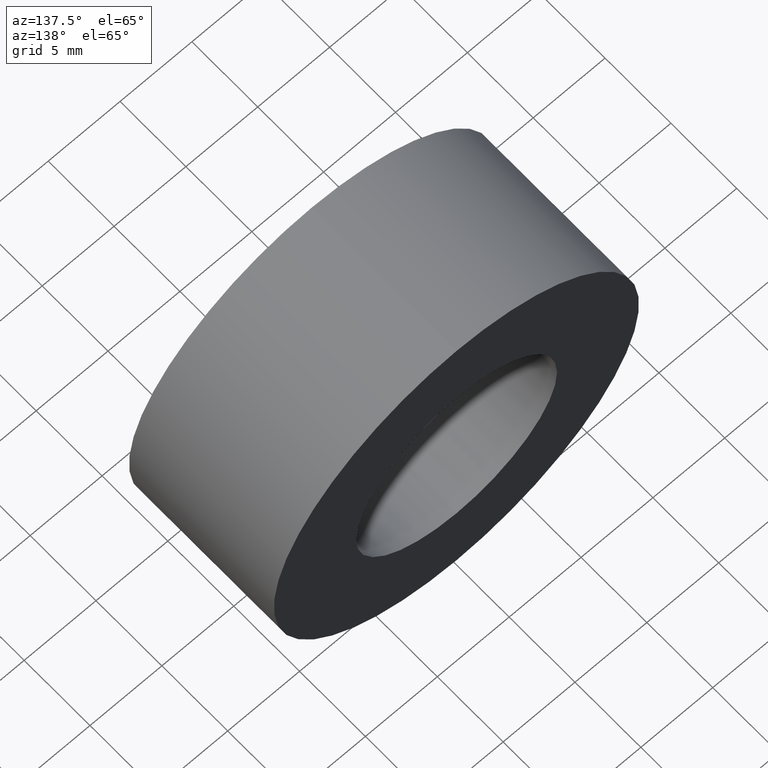
[diagram: clean part render]
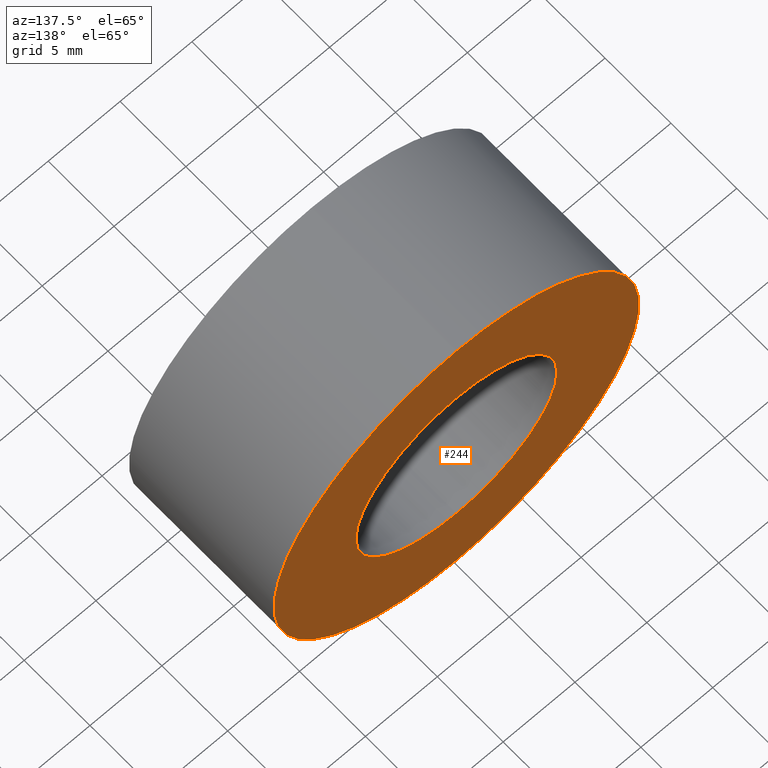
[diagram: same view with one face highlighted and labeled with its STEP entity id]
A machine part, auxiliary view. The second image highlights one B-rep face of the part: STEP entity #244.
In plain terms, the highlighted planar face has unit normal (0, -1, 0).
Its self-contained STEP definition (entity closure, byte-faithful):
#6 = CIRCLE ( 'NONE', #324, 12.70000000000000500 ) ;
#18 = AXIS2_PLACEMENT_3D ( 'NONE', #87, #167, #53 ) ;
#38 = CARTESIAN_POINT ( 'NONE',  ( 0.0000000000000000000, 10.99999999999999600, 0.0000000000000000000 ) ) ;
#44 = DIRECTION ( 'NONE',  ( -0.0000000000000000000, 1.000000000000000000, -0.0000000000000000000 ) ) ;
#53 = DIRECTION ( 'NONE',  ( 0.0000000000000000000, 0.0000000000000000000, 1.000000000000000000 ) ) ;
#54 = AXIS2_PLACEMENT_3D ( 'NONE', #84, #44, #404 ) ;
#61 = VERTEX_POINT ( 'NONE', #230 ) ;
#69 = VERTEX_POINT ( 'NONE', #119 ) ;
#70 = VERTEX_POINT ( 'NONE', #101 ) ;
#72 = ORIENTED_EDGE ( 'NONE', *, *, #141, .F. ) ;
#84 = CARTESIAN_POINT ( 'NONE',  ( 0.0000000000000000000, 10.99999999999999600, 0.0000000000000000000 ) ) ;
#87 = CARTESIAN_POINT ( 'NONE',  ( 0.0000000000000000000, 10.99999999999999600, 0.0000000000000000000 ) ) ;
#101 = CARTESIAN_POINT ( 'NONE',  ( 0.0000000000000000000, 10.99999999999999600, 12.70000000000000500 ) ) ;
#103 = FACE_BOUND ( 'NONE', #431, .T. ) ;
#107 = DIRECTION ( 'NONE',  ( -0.0000000000000000000, 1.000000000000000000, -0.0000000000000000000 ) ) ;
#113 = CARTESIAN_POINT ( 'NONE',  ( 8.572527594031482100E-016, 10.99999999999999600, -7.000000000000008000 ) ) ;
#119 = CARTESIAN_POINT ( 'NONE',  ( 0.0000000000000000000, 10.99999999999999600, 7.000000000000007100 ) ) ;
#128 = ORIENTED_EDGE ( 'NONE', *, *, #154, .T. ) ;
#132 = FACE_OUTER_BOUND ( 'NONE', #198, .T. ) ;
#134 = DIRECTION ( 'NONE',  ( 0.0000000000000000000, -1.000000000000000000, 0.0000000000000000000 ) ) ;
#141 = EDGE_CURVE ( 'NONE', #407, #69, #156, .T. ) ;
#154 = EDGE_CURVE ( 'NONE', #61, #70, #6, .T. ) ;
#156 = CIRCLE ( 'NONE', #207, 7.000000000000007100 ) ;
#163 = CIRCLE ( 'NONE', #18, 7.000000000000007100 ) ;
#167 = DIRECTION ( 'NONE',  ( -0.0000000000000000000, 1.000000000000000000, -0.0000000000000000000 ) ) ;
#193 = ORIENTED_EDGE ( 'NONE', *, *, #383, .T. ) ;
#198 = EDGE_LOOP ( 'NONE', ( #193, #128 ) ) ;
#207 = AXIS2_PLACEMENT_3D ( 'NONE', #384, #389, #365 ) ;
#217 = EDGE_CURVE ( 'NONE', #69, #407, #163, .T. ) ;
#230 = CARTESIAN_POINT ( 'NONE',  ( 1.555301434917139000E-015, 10.99999999999999600, -12.70000000000000500 ) ) ;
#244 = ADVANCED_FACE ( 'NONE', ( #103, #132 ), #388, .F. ) ;
#262 = DIRECTION ( 'NONE',  ( 0.0000000000000000000, -0.0000000000000000000, -1.000000000000000000 ) ) ;
#297 = AXIS2_PLACEMENT_3D ( 'NONE', #417, #134, #262 ) ;
#307 = CIRCLE ( 'NONE', #54, 12.70000000000000500 ) ;
#324 = AXIS2_PLACEMENT_3D ( 'NONE', #38, #107, #420 ) ;
#337 = ORIENTED_EDGE ( 'NONE', *, *, #217, .F. ) ;
#365 = DIRECTION ( 'NONE',  ( 0.0000000000000000000, 0.0000000000000000000, 1.000000000000000000 ) ) ;
#383 = EDGE_CURVE ( 'NONE', #70, #61, #307, .T. ) ;
#384 = CARTESIAN_POINT ( 'NONE',  ( 0.0000000000000000000, 10.99999999999999600, 0.0000000000000000000 ) ) ;
#388 = PLANE ( 'NONE',  #297 ) ;
#389 = DIRECTION ( 'NONE',  ( -0.0000000000000000000, 1.000000000000000000, -0.0000000000000000000 ) ) ;
#404 = DIRECTION ( 'NONE',  ( 0.0000000000000000000, 0.0000000000000000000, 1.000000000000000000 ) ) ;
#407 = VERTEX_POINT ( 'NONE', #113 ) ;
#417 = CARTESIAN_POINT ( 'NONE',  ( 7.000000000000007100, 11.00000000000000000, 0.0000000000000000000 ) ) ;
#420 = DIRECTION ( 'NONE',  ( 0.0000000000000000000, 0.0000000000000000000, 1.000000000000000000 ) ) ;
#431 = EDGE_LOOP ( 'NONE', ( #337, #72 ) ) ;